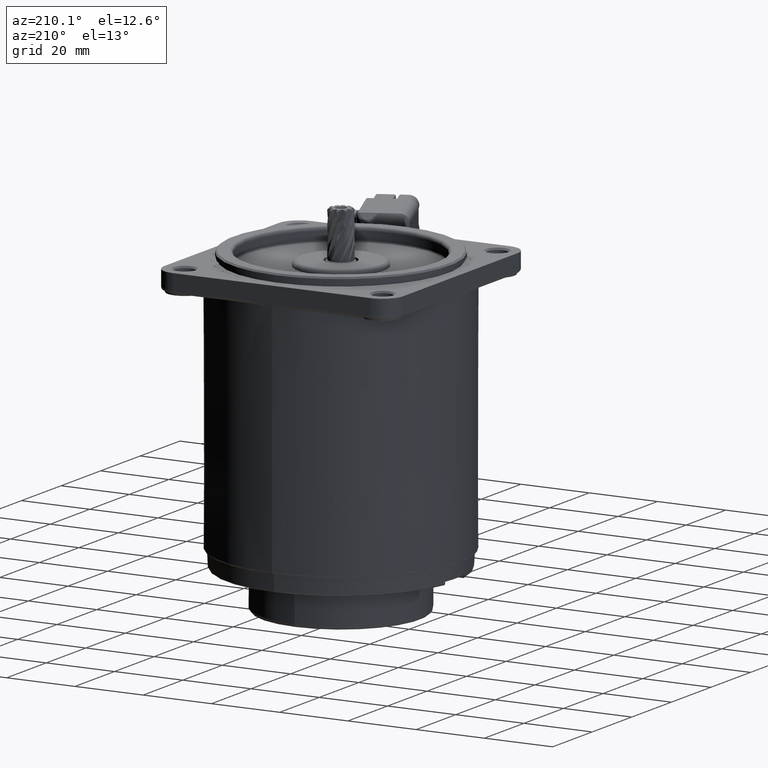
[diagram: clean part render]
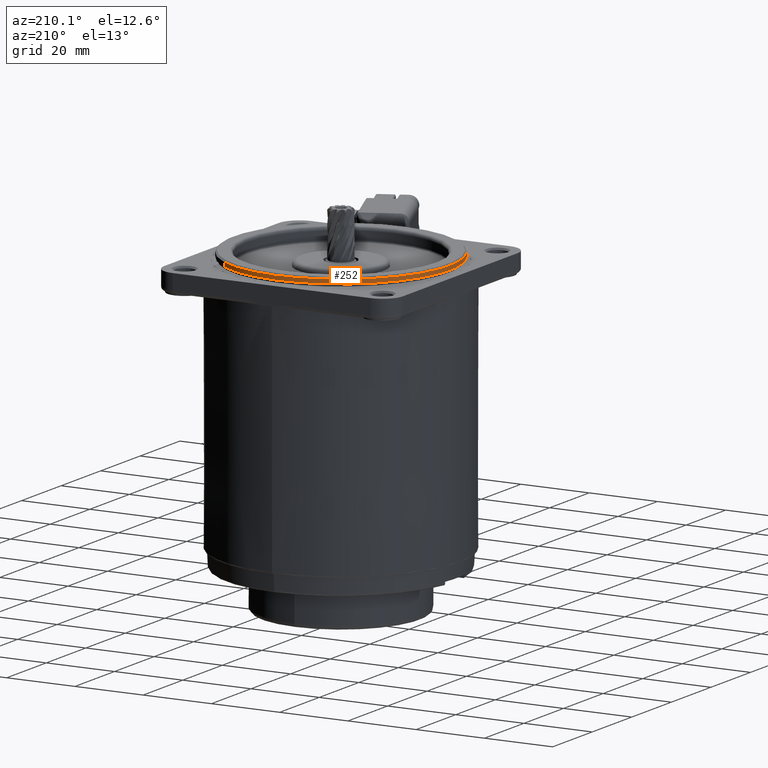
[diagram: same view with one face highlighted and labeled with its STEP entity id]
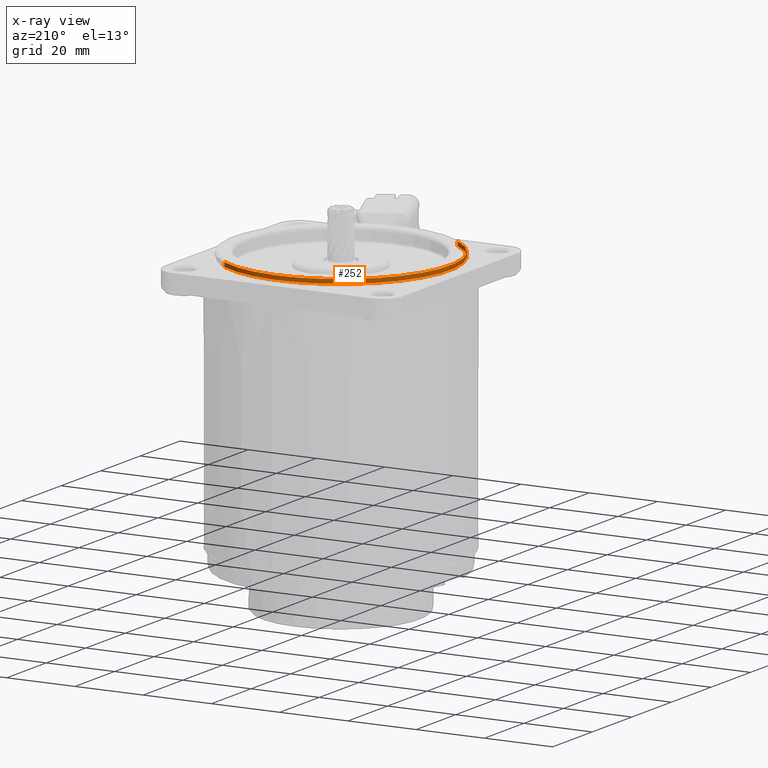
[diagram: x-ray of the same camera — body ghosted, the highlighted face saturated]
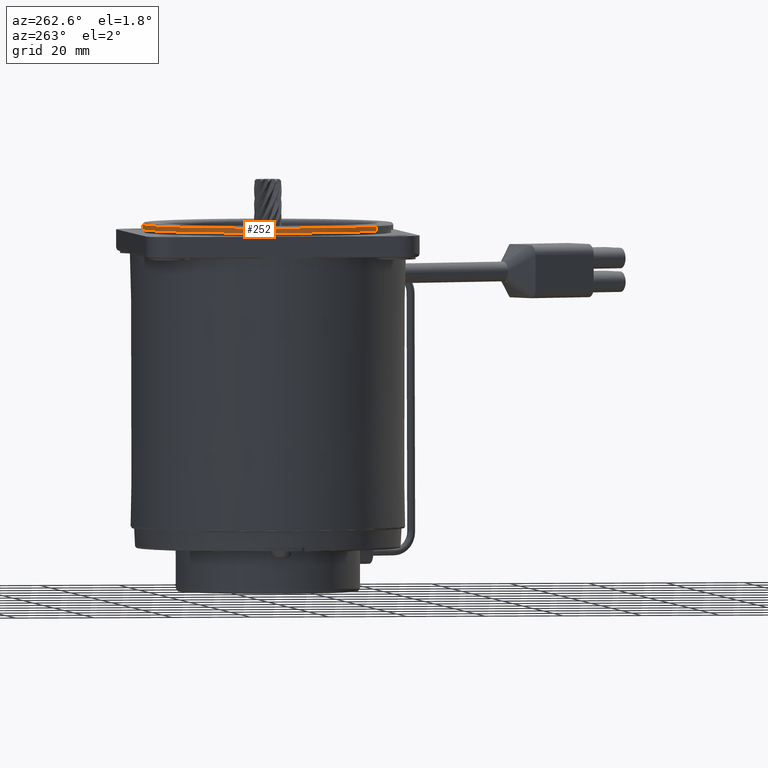
[diagram: same view with one face highlighted and labeled with its STEP entity id]
A machine part, auxiliary view. The second image highlights one B-rep face of the part: STEP entity #252.
The next image is the same camera in x-ray: the body ghosted, the highlighted face saturated — about 0% of this face is hidden behind the body in this view.
A second angle (auxiliary view) of the same face is appended — the face is thin or edge-on in the first view.
In plain terms, the highlighted cylindrical surface (partial cylindrical patch) has radius 31.965 mm, axis along (-0, -0, 1).
Its self-contained STEP definition (entity closure, byte-faithful):
#170 = VERTEX_POINT ( 'NONE', #5871 ) ;
#231 = EDGE_CURVE ( 'NONE', #234, #170, #6039, .T. ) ;
#232 = EDGE_CURVE ( 'NONE', #243, #170, #6040, .T. ) ;
#234 = VERTEX_POINT ( 'NONE', #5979 ) ;
#243 = VERTEX_POINT ( 'NONE', #6065 ) ;
#244 = EDGE_CURVE ( 'NONE', #243, #245, #6020, .T. ) ;
#245 = VERTEX_POINT ( 'NONE', #6062 ) ;
#246 = ORIENTED_EDGE ( 'NONE', *, *, #258, .T. ) ;
#250 = EDGE_LOOP ( 'NONE', ( #257, #246, #256, #273 ) ) ;
#252 = ADVANCED_FACE ( 'NONE', ( #6055 ), #6053, .T. ) ;
#256 = ORIENTED_EDGE ( 'NONE', *, *, #231, .T. ) ;
#257 = ORIENTED_EDGE ( 'NONE', *, *, #244, .T. ) ;
#258 = EDGE_CURVE ( 'NONE', #245, #234, #6044, .T. ) ;
#273 = ORIENTED_EDGE ( 'NONE', *, *, #232, .F. ) ;
#5871 = CARTESIAN_POINT ( 'NONE',  ( -31.96500000000000000, 0.0000000000000000000, 0.4649999999999926400 ) ) ;
#5979 = CARTESIAN_POINT ( 'NONE',  ( 31.96500000000000000, 3.914583493474514200E-015, 0.4649999999999926400 ) ) ;
#6020 = CIRCLE ( 'NONE', #6060, 31.96500000000000000 ) ;
#6025 = AXIS2_PLACEMENT_3D ( 'NONE', #6046, #6050, #6070 ) ;
#6032 = DIRECTION ( 'NONE',  ( -0.0000000000000000000, -0.0000000000000000000, -1.000000000000000000 ) ) ;
#6033 = VECTOR ( 'NONE', #6032, 1000.000000000000000 ) ;
#6034 = CARTESIAN_POINT ( 'NONE',  ( -31.96500000000000000, 0.0000000000000000000, 0.0000000000000000000 ) ) ;
#6035 = DIRECTION ( 'NONE',  ( 1.000000000000000000, 0.0000000000000000000, 0.0000000000000000000 ) ) ;
#6036 = DIRECTION ( 'NONE',  ( 0.0000000000000000000, 0.0000000000000000000, 1.000000000000000000 ) ) ;
#6037 = CARTESIAN_POINT ( 'NONE',  ( 0.0000000000000000000, 0.0000000000000000000, 0.4649999999999926400 ) ) ;
#6038 = AXIS2_PLACEMENT_3D ( 'NONE', #6037, #6036, #6035 ) ;
#6039 = CIRCLE ( 'NONE', #6038, 31.96500000000000000 ) ;
#6040 = LINE ( 'NONE', #6034, #6033 ) ;
#6043 = CARTESIAN_POINT ( 'NONE',  ( 31.96500000000000000, 3.914583493474514200E-015, 0.0000000000000000000 ) ) ;
#6044 = LINE ( 'NONE', #6043, #6085 ) ;
#6046 = CARTESIAN_POINT ( 'NONE',  ( 0.0000000000000000000, 0.0000000000000000000, 0.0000000000000000000 ) ) ;
#6050 = DIRECTION ( 'NONE',  ( -0.0000000000000000000, -0.0000000000000000000, -1.000000000000000000 ) ) ;
#6053 = CYLINDRICAL_SURFACE ( 'NONE', #6025, 31.96500000000000000 ) ;
#6055 = FACE_OUTER_BOUND ( 'NONE', #250, .T. ) ;
#6057 = DIRECTION ( 'NONE',  ( -1.000000000000000000, 0.0000000000000000000, 0.0000000000000000000 ) ) ;
#6058 = DIRECTION ( 'NONE',  ( -0.0000000000000000000, -0.0000000000000000000, -1.000000000000000000 ) ) ;
#6059 = CARTESIAN_POINT ( 'NONE',  ( 0.0000000000000000000, 0.0000000000000000000, 1.700000000000000200 ) ) ;
#6060 = AXIS2_PLACEMENT_3D ( 'NONE', #6059, #6058, #6057 ) ;
#6062 = CARTESIAN_POINT ( 'NONE',  ( 31.96500000000000000, 3.914583493474514200E-015, 1.700000000000000200 ) ) ;
#6065 = CARTESIAN_POINT ( 'NONE',  ( -31.96500000000000000, 0.0000000000000000000, 1.700000000000000200 ) ) ;
#6070 = DIRECTION ( 'NONE',  ( -1.000000000000000000, 0.0000000000000000000, 0.0000000000000000000 ) ) ;
#6084 = DIRECTION ( 'NONE',  ( -0.0000000000000000000, -0.0000000000000000000, -1.000000000000000000 ) ) ;
#6085 = VECTOR ( 'NONE', #6084, 1000.000000000000000 ) ;